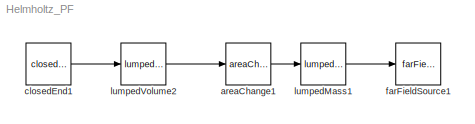
MODEL Helmholtz_PF
KIND model
BLOCK [Reference] areaChange1  REF=Network_library/areaChange
  AttributesFormatString = %<aj> m^2
  D = 0
  Ports = [1, 1]
  SID = 447
  SourceBlock = Network_library/areaChange
  aj = pi/4 * .05^2
  element = areaChange
BLOCK [Reference] closedEnd1  REF=Network_library/closedEnd
  D = 0
  Mach = 0.
  Ports = [0, 1]
  SID = 451
  SourceBlock = Network_library/closedEnd
  a = 1
  c = 340
  element = closedEnd
  loc = Upstream
  rho = 1.2
BLOCK [Reference] farFieldSource1  REF=Network_library/farFieldSource
  Amp = 100
  AttributesFormatString = %<Amp> Pa
  D = 1
  Mach = 0.1
  Ports = [1]
  SID = 445
  SourceBlock = Network_library/farFieldSource
  a = 1
  c = 100
  element = farFieldSource
  loc = Downstream
  rho = 1.2
BLOCK [Reference] lumpedMass1  REF=Network_library/lumpedMass
  AttributesFormatString = %<Leq> m
  Flag = Equivalent length
  Leq = 1e-2
  Ports = [1, 1]
  SID = 448
  SourceBlock = Network_library/lumpedMass
  Veq = 1
  element = lumpedMass
  meq = 1e-3
BLOCK [Reference] lumpedVolume2  REF=Network_library/lumpedVolume1
  AttributesFormatString = %<Leq> m
  Flag = Equivalent length
  Leq = .5
  Ports = [1, 1]
  SID = 449
  SourceBlock = Network_library/lumpedVolume1
  Veq = 1
  element = lumpedVolume
LINE areaChange1:1 -> lumpedMass1:1
LINE closedEnd1:1 -> lumpedVolume2:1
LINE lumpedMass1:1 -> farFieldSource1:1
LINE lumpedVolume2:1 -> areaChange1:1
